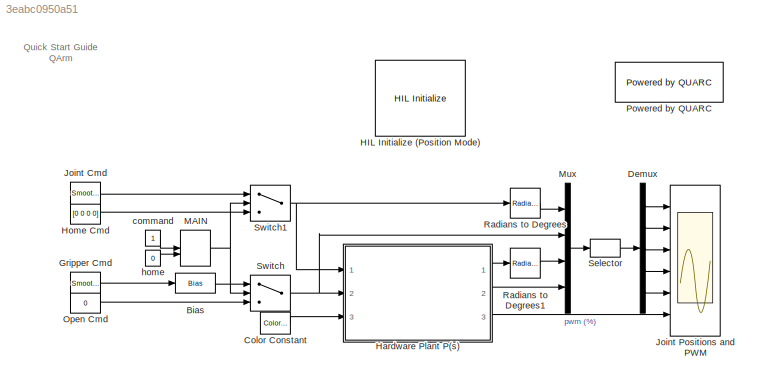
MODEL slx_3eabc0950a51
KIND model
CONFIG AbsTol = auto
CONFIG EnableMultiTasking = on
CONFIG FixedStep = 1/500
CONFIG MaxStep = auto
CONFIG MinStep = auto
CONFIG RelTol = 1e-3
CONFIG SampleTimeConstraint = Unconstrained
CONFIG Solver = ode4
CONFIG SolverName = ode4
CONFIG StartTime = 0.0
CONFIG StopTime = inf
BLOCK [Bias] Bias
  Bias = 0.5
  SaturateOnIntegerOverflow = off
BLOCK [Reference] Color Constant  REF=quarc_library/Sources/Signals/Color Constant
  Ports = [0, 1]
  SourceBlock = quarc_library/Sources/Signals/Color Constant
  SourceProductName = QUARC Targets
  SourceType = Color Constant
BLOCK [Demux] Demux
  Outputs = [2 2 2 2 2]
  Ports = [1, 5]
BLOCK [Reference] Gripper Cmd  REF=quarc_library/Sources/Signals/Smooth Signal
Generator
  NameLocation = top
  Ports = [0, 1]
  SourceBlock = quarc_library/Sources/Signals/Smooth Signal\nGenerator
  SourceProductName = QUARC Targets
  SourceType = Smooth Signal Generator
BLOCK [Reference] HIL Initialize (Position Mode)  REF=quarc_library/Data Acquisition/Generic/Configuration/HIL Initialize
  AttributesFormatString = %<object_name> (%<board_type>-%<board_number>)
  Ports = []
  SourceBlock = quarc_library/Data Acquisition/Generic/Configuration/HIL Initialize
  SourceProductName = QUARC Targets
  SourceType = HIL Initialize
  UserDataPersistent = on
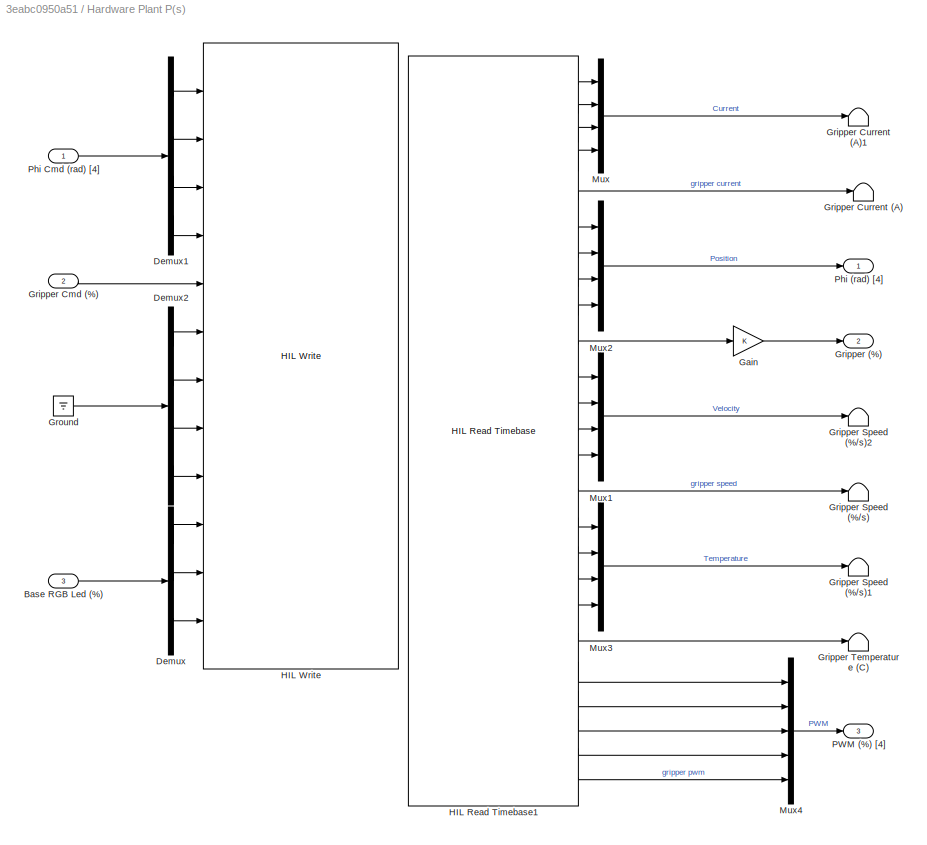
BLOCK [SubSystem] Hardware Plant P(s)
  Ports = [3, 3]
  RequestExecContextInheritance = off
BLOCK [Inport] Hardware Plant P(s)/Base RGB Led (%)
  Port = 3
BLOCK [Demux] Hardware Plant P(s)/Demux
  Outputs = 3
  Ports = [1, 3]
BLOCK [Demux] Hardware Plant P(s)/Demux1
  Ports = [1, 4]
BLOCK [Demux] Hardware Plant P(s)/Demux2
  Ports = [1, 4]
BLOCK [Gain] Hardware Plant P(s)/Gain
BLOCK [Outport] Hardware Plant P(s)/Gripper (%)
  Port = 2
  VectorParamsAs1DForOutWhenUnconnected = off
BLOCK [Inport] Hardware Plant P(s)/Gripper Cmd (%)
  Port = 2
BLOCK [Terminator] Hardware Plant P(s)/Gripper Current (A)
BLOCK [Terminator] Hardware Plant P(s)/Gripper Current (A)1
BLOCK [Terminator] Hardware Plant P(s)/Gripper Speed (%//s)
BLOCK [Terminator] Hardware Plant P(s)/Gripper Speed (%//s)1
BLOCK [Terminator] Hardware Plant P(s)/Gripper Speed (%//s)2
BLOCK [Terminator] Hardware Plant P(s)/Gripper Temperature (C)
BLOCK [Ground] Hardware Plant P(s)/Ground
BLOCK [Reference] Hardware Plant P(s)/HIL Read Timebase1  REF=quarc_library/Data Acquisition/Generic/Timebases/HIL Read
Timebase
  AttributesFormatString = (%<object_name>)
  Ports = [0, 25]
  SourceBlock = quarc_library/Data Acquisition/Generic/Timebases/HIL Read\nTimebase
  SourceProductName = QUARC Targets
  SourceType = HIL Read Timebase
  UserDataPersistent = on
BLOCK [Reference] Hardware Plant P(s)/HIL Write  REF=quarc_library/Data Acquisition/Generic/Immediate I//O/HIL Write
  AttributesFormatString = (%<object_name>)
  Ports = [12]
  SourceBlock = quarc_library/Data Acquisition/Generic/Immediate I//O/HIL Write
  SourceProductName = QUARC Targets
  SourceType = HIL Write
  UserDataPersistent = on
BLOCK [Mux] Hardware Plant P(s)/Mux
  DisplayOption = bar
  Ports = [4, 1]
BLOCK [Mux] Hardware Plant P(s)/Mux1
  DisplayOption = bar
  Ports = [4, 1]
BLOCK [Mux] Hardware Plant P(s)/Mux2
  DisplayOption = bar
  Ports = [4, 1]
BLOCK [Mux] Hardware Plant P(s)/Mux3
  DisplayOption = bar
  Ports = [4, 1]
BLOCK [Mux] Hardware Plant P(s)/Mux4
  DisplayOption = bar
  Inputs = 5
  Ports = [5, 1]
BLOCK [Outport] Hardware Plant P(s)/PWM (%) [4]
  Port = 3
  VectorParamsAs1DForOutWhenUnconnected = off
BLOCK [Outport] Hardware Plant P(s)/Phi (rad) [4]
  VectorParamsAs1DForOutWhenUnconnected = off
BLOCK [Inport] Hardware Plant P(s)/Phi Cmd (rad) [4]
BLOCK [Constant] Home Cmd
  Value = [0 0 0 0]
BLOCK [Reference] Joint Cmd  REF=quarc_library/Sources/Signals/Smooth Signal
Generator
  NameLocation = top
  Ports = [0, 1]
  SourceBlock = quarc_library/Sources/Signals/Smooth Signal\nGenerator
  SourceProductName = QUARC Targets
  SourceType = Smooth Signal Generator
BLOCK [Scope] Joint Positions and PWM
  Floating = off
  NumInputPorts = 6
  Ports = [6]
  ScopeSpecificationString = Simulink.scopes.TimeScopeBlockCfg('CurrentConfiguration', extmgr.ConfigurationSet(extmgr.Configuration('Core','General UI',true),extmgr.Configuration('Core','Source UI',true),extmgr.Configuration('Sources','WiredSimulink',true),extmgr.Configuration('Visuals','Time Domain',true,'SerializedDisplays',{struct('MinYLimReal','-28.43376','MaxYLimReal','28.21577','YLabelReal','degrees','MinYLimMag','0.000...<+6019ch>
BLOCK [ManualSwitch] MAIN
  CurrentSetting = 0
  NameLocation = top
BLOCK [Mux] Mux
  DisplayOption = bar
  Ports = [4, 1]
BLOCK [Constant] Open Cmd
  Value = 0
BLOCK [Reference] Powered by QUARC  REF=quarc_library/Logos/Powered by QUARC
  Ports = []
  SourceBlock = quarc_library/Logos/Powered by QUARC
  SourceProductName = QUARC Targets
  SourceType = Powered by QUARC
BLOCK [Reference] Radians to Degrees  REF=simulink_extras/Transformations/Radians
to Degrees
  Ports = [1, 1]
  SourceBlock = simulink_extras/Transformations/Radians\nto Degrees
  SourceProductBaseCode = SL
  SourceType = RadiansToDegrees
BLOCK [Reference] Radians to Degrees1  REF=simulink_extras/Transformations/Radians
to Degrees
  Ports = [1, 1]
  SourceBlock = simulink_extras/Transformations/Radians\nto Degrees
  SourceProductBaseCode = SL
  SourceType = RadiansToDegrees
BLOCK [Selector] Selector
  IndexOptions = Index vector (dialog)
  Indices = [1 6 2 7 3 8 4 9 5 10]
  InputPortWidth = 10
  OutputSizes = 1
  Ports = [1, 1]
BLOCK [Switch] Switch
  Criteria = u2 > Threshold
  InputSameDT = off
  SaturateOnIntegerOverflow = off
BLOCK [Switch] Switch1
  Criteria = u2 > Threshold
  InputSameDT = off
  SaturateOnIntegerOverflow = off
BLOCK [Constant] command
  NameLocation = top
BLOCK [Constant] home
  Value = 0
ANNOTATION (root): Quick Start Guide QArm
LINE Bias:1 -> Switch:1
LINE Color Constant:1 -> Hardware Plant P(s):3
LINE Demux:1 -> Joint Positions and PWM:1
LINE Demux:2 -> Joint Positions and PWM:2
LINE Demux:3 -> Joint Positions and PWM:3
LINE Demux:4 -> Joint Positions and PWM:4
LINE Demux:5 -> Joint Positions and PWM:5
LINE Gripper Cmd:1 -> Bias:1
LINE Hardware Plant P(s)/Base RGB Led (%):1 -> Hardware Plant P(s)/Demux:1
LINE Hardware Plant P(s)/Demux1:1 -> Hardware Plant P(s)/HIL Write:1
LINE Hardware Plant P(s)/Demux1:2 -> Hardware Plant P(s)/HIL Write:2
LINE Hardware Plant P(s)/Demux1:3 -> Hardware Plant P(s)/HIL Write:3
LINE Hardware Plant P(s)/Demux1:4 -> Hardware Plant P(s)/HIL Write:4
LINE Hardware Plant P(s)/Demux2:1 -> Hardware Plant P(s)/HIL Write:6
LINE Hardware Plant P(s)/Demux2:2 -> Hardware Plant P(s)/HIL Write:7
LINE Hardware Plant P(s)/Demux2:3 -> Hardware Plant P(s)/HIL Write:8
LINE Hardware Plant P(s)/Demux2:4 -> Hardware Plant P(s)/HIL Write:9
LINE Hardware Plant P(s)/Demux:1 -> Hardware Plant P(s)/HIL Write:10
LINE Hardware Plant P(s)/Demux:2 -> Hardware Plant P(s)/HIL Write:11
LINE Hardware Plant P(s)/Demux:3 -> Hardware Plant P(s)/HIL Write:12
LINE Hardware Plant P(s)/Gain:1 -> Hardware Plant P(s)/Gripper (%):1
LINE Hardware Plant P(s)/Gripper Cmd (%):1 -> Hardware Plant P(s)/HIL Write:5
LINE Hardware Plant P(s)/Ground:1 -> Hardware Plant P(s)/Demux2:1
LINE Hardware Plant P(s)/HIL Read Timebase1:1 -> Hardware Plant P(s)/Mux:1
LINE Hardware Plant P(s)/HIL Read Timebase1:10 -> Hardware Plant P(s)/Gain:1
LINE Hardware Plant P(s)/HIL Read Timebase1:11 -> Hardware Plant P(s)/Mux1:1
LINE Hardware Plant P(s)/HIL Read Timebase1:12 -> Hardware Plant P(s)/Mux1:2
LINE Hardware Plant P(s)/HIL Read Timebase1:13 -> Hardware Plant P(s)/Mux1:3
LINE Hardware Plant P(s)/HIL Read Timebase1:14 -> Hardware Plant P(s)/Mux1:4
LINE Hardware Plant P(s)/HIL Read Timebase1:15 -> Hardware Plant P(s)/Gripper Speed (%//s):1
LINE Hardware Plant P(s)/HIL Read Timebase1:16 -> Hardware Plant P(s)/Mux3:1
LINE Hardware Plant P(s)/HIL Read Timebase1:17 -> Hardware Plant P(s)/Mux3:2
LINE Hardware Plant P(s)/HIL Read Timebase1:18 -> Hardware Plant P(s)/Mux3:3
LINE Hardware Plant P(s)/HIL Read Timebase1:19 -> Hardware Plant P(s)/Mux3:4
LINE Hardware Plant P(s)/HIL Read Timebase1:2 -> Hardware Plant P(s)/Mux:2
LINE Hardware Plant P(s)/HIL Read Timebase1:20 -> Hardware Plant P(s)/Gripper Temperature (C):1
LINE Hardware Plant P(s)/HIL Read Timebase1:21 -> Hardware Plant P(s)/Mux4:1
LINE Hardware Plant P(s)/HIL Read Timebase1:22 -> Hardware Plant P(s)/Mux4:2
LINE Hardware Plant P(s)/HIL Read Timebase1:23 -> Hardware Plant P(s)/Mux4:3
LINE Hardware Plant P(s)/HIL Read Timebase1:24 -> Hardware Plant P(s)/Mux4:4
LINE Hardware Plant P(s)/HIL Read Timebase1:25 -> Hardware Plant P(s)/Mux4:5
LINE Hardware Plant P(s)/HIL Read Timebase1:3 -> Hardware Plant P(s)/Mux:3
LINE Hardware Plant P(s)/HIL Read Timebase1:4 -> Hardware Plant P(s)/Mux:4
LINE Hardware Plant P(s)/HIL Read Timebase1:5 -> Hardware Plant P(s)/Gripper Current (A):1
LINE Hardware Plant P(s)/HIL Read Timebase1:6 -> Hardware Plant P(s)/Mux2:1
LINE Hardware Plant P(s)/HIL Read Timebase1:7 -> Hardware Plant P(s)/Mux2:2
LINE Hardware Plant P(s)/HIL Read Timebase1:8 -> Hardware Plant P(s)/Mux2:3
LINE Hardware Plant P(s)/HIL Read Timebase1:9 -> Hardware Plant P(s)/Mux2:4
LINE Hardware Plant P(s)/Mux1:1 -> Hardware Plant P(s)/Gripper Speed (%//s)2:1
LINE Hardware Plant P(s)/Mux2:1 -> Hardware Plant P(s)/Phi (rad) [4]:1
LINE Hardware Plant P(s)/Mux3:1 -> Hardware Plant P(s)/Gripper Speed (%//s)1:1
LINE Hardware Plant P(s)/Mux4:1 -> Hardware Plant P(s)/PWM (%) [4]:1
LINE Hardware Plant P(s)/Mux:1 -> Hardware Plant P(s)/Gripper Current (A)1:1
LINE Hardware Plant P(s)/Phi Cmd (rad) [4]:1 -> Hardware Plant P(s)/Demux1:1
LINE Hardware Plant P(s):1 -> Radians to Degrees1:1
LINE Hardware Plant P(s):2 -> Mux:4
LINE Hardware Plant P(s):3 -> Joint Positions and PWM:6
LINE Home Cmd:1 -> Switch1:3
LINE Joint Cmd:1 -> Switch1:1
NET MAIN:1 -> Switch1:2, Switch:2
LINE Mux:1 -> Selector:1
LINE Open Cmd:1 -> Switch:3
LINE Radians to Degrees1:1 -> Mux:3
LINE Radians to Degrees:1 -> Mux:1
LINE Selector:1 -> Demux:1
NET Switch1:1 -> Hardware Plant P(s):1, Radians to Degrees:1
NET Switch:1 -> Hardware Plant P(s):2, Mux:2
LINE command:1 -> MAIN:1
LINE home:1 -> MAIN:2
note: NET lines group one-source signal fan-out (src -> all destinations, sorted); 1:1 wires keep LINE
